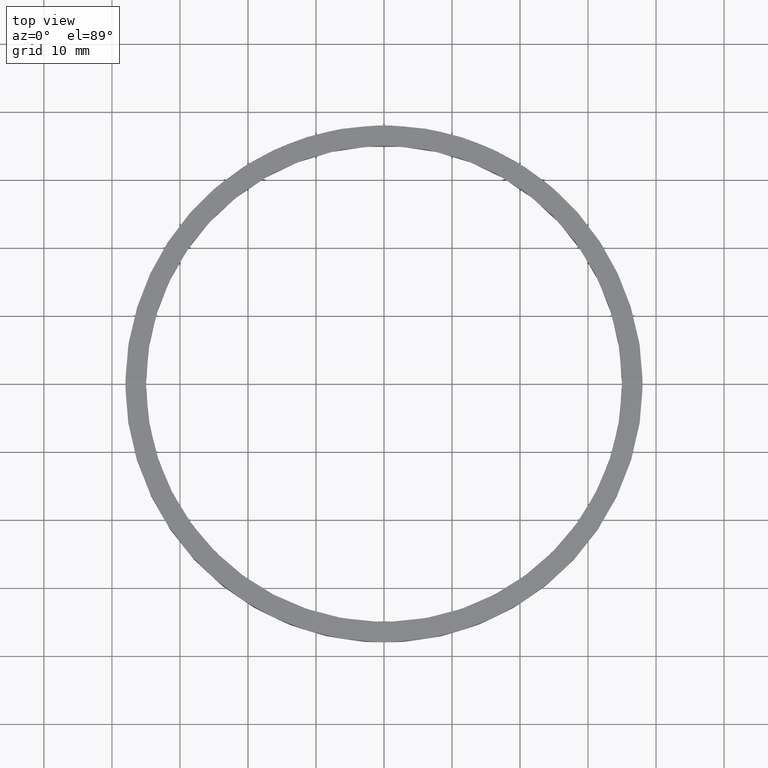
[diagram: clean part render]
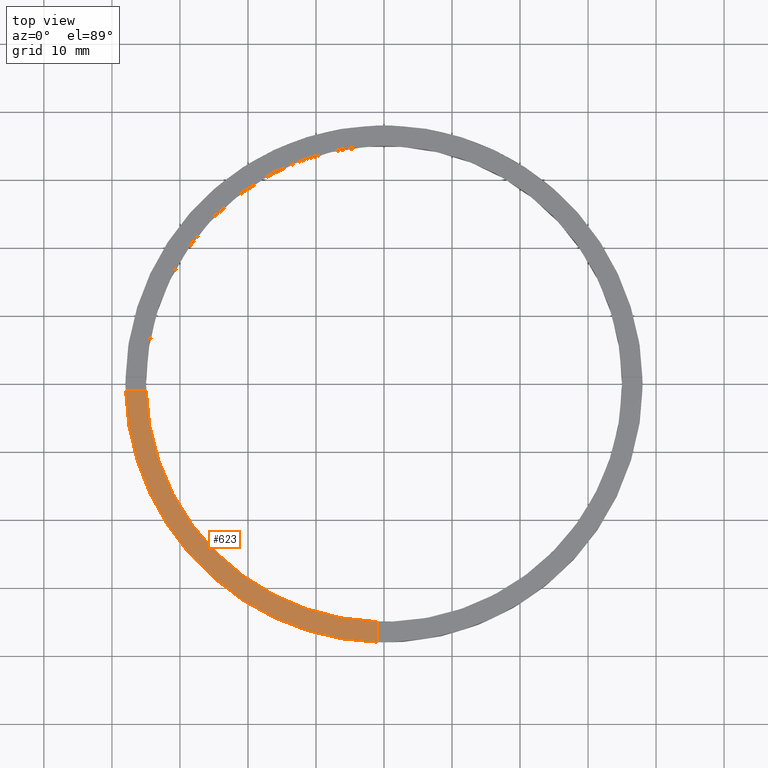
[diagram: same view with one face highlighted and labeled with its STEP entity id]
A machine part, top view. The second image highlights one B-rep face of the part: STEP entity #623.
In plain terms, the highlighted planar face has unit normal (0, 0, 1).
Its self-contained STEP definition (entity closure, byte-faithful):
#4 = EDGE_CURVE ( 'NONE', #170, #750, #207, .T. ) ;
#8 = CARTESIAN_POINT ( 'NONE',  ( -28.00000000000018474, -1.000000000000025757, 3.500000000000000000 ) ) ;
#42 = CARTESIAN_POINT ( 'NONE',  ( -1.000000000000159872, -37.98683982644514856, 3.500000000000000000 ) ) ;
#58 = DIRECTION ( 'NONE',  ( 0.000000000000000000, 0.000000000000000000, 1.000000000000000000 ) ) ;
#69 = AXIS2_PLACEMENT_3D ( 'NONE', #519, #371, #576 ) ;
#82 = EDGE_LOOP ( 'NONE', ( #505, #216, #88, #647 ) ) ;
#88 = ORIENTED_EDGE ( 'NONE', *, *, #125, .F. ) ;
#125 = EDGE_CURVE ( 'NONE', #398, #379, #458, .T. ) ;
#131 = CARTESIAN_POINT ( 'NONE',  ( -34.98571136907180801, -1.000000000000027089, 3.500000000000000000 ) ) ;
#170 = VERTEX_POINT ( 'NONE', #541 ) ;
#207 = LINE ( 'NONE', #310, #697 ) ;
#216 = ORIENTED_EDGE ( 'NONE', *, *, #401, .F. ) ;
#271 = DIRECTION ( 'NONE',  ( 1.000000000000000000, 1.951563910473907735E-16, -0.000000000000000000 ) ) ;
#310 = CARTESIAN_POINT ( 'NONE',  ( -1.000000000000161204, -28.00000000000017764, 3.500000000000000000 ) ) ;
#362 = FACE_OUTER_BOUND ( 'NONE', #82, .T. ) ;
#371 = DIRECTION ( 'NONE',  ( 0.000000000000000000, 0.000000000000000000, 1.000000000000000000 ) ) ;
#379 = VERTEX_POINT ( 'NONE', #131 ) ;
#387 = DIRECTION ( 'NONE',  ( 1.301042606982605074E-16, -1.000000000000000000, 0.000000000000000000 ) ) ;
#390 = CARTESIAN_POINT ( 'NONE',  ( -37.98683982644515567, -1.000000000000027756, 3.500000000000000000 ) ) ;
#395 = DIRECTION ( 'NONE',  ( 1.000000000000000000, 0.000000000000000000, 0.000000000000000000 ) ) ;
#398 = VERTEX_POINT ( 'NONE', #390 ) ;
#401 = EDGE_CURVE ( 'NONE', #379, #170, #556, .T. ) ;
#414 = AXIS2_PLACEMENT_3D ( 'NONE', #734, #58, #395 ) ;
#416 = EDGE_CURVE ( 'NONE', #398, #750, #562, .T. ) ;
#426 = PLANE ( 'NONE',  #716 ) ;
#458 = LINE ( 'NONE', #8, #707 ) ;
#463 = DIRECTION ( 'NONE',  ( 1.000000000000000000, 0.000000000000000000, -0.000000000000000000 ) ) ;
#505 = ORIENTED_EDGE ( 'NONE', *, *, #4, .F. ) ;
#519 = CARTESIAN_POINT ( 'NONE',  ( 0.000000000000000000, 0.000000000000000000, 3.500000000000000000 ) ) ;
#530 = CARTESIAN_POINT ( 'NONE',  ( 0.000000000000000000, 0.000000000000000000, 3.500000000000000000 ) ) ;
#541 = CARTESIAN_POINT ( 'NONE',  ( -1.000000000000160316, -34.98571136907180090, 3.500000000000000000 ) ) ;
#556 = CIRCLE ( 'NONE', #414, 35.00000000000000711 ) ;
#562 = CIRCLE ( 'NONE', #69, 38.00000000000000000 ) ;
#576 = DIRECTION ( 'NONE',  ( 1.000000000000000000, 0.000000000000000000, 0.000000000000000000 ) ) ;
#623 = ADVANCED_FACE ( 'NONE', ( #362 ), #426, .T. ) ;
#647 = ORIENTED_EDGE ( 'NONE', *, *, #416, .T. ) ;
#697 = VECTOR ( 'NONE', #387, 1000.000000000000000 ) ;
#707 = VECTOR ( 'NONE', #271, 1000.000000000000000 ) ;
#716 = AXIS2_PLACEMENT_3D ( 'NONE', #530, #782, #463 ) ;
#734 = CARTESIAN_POINT ( 'NONE',  ( 0.000000000000000000, 0.000000000000000000, 3.500000000000000000 ) ) ;
#750 = VERTEX_POINT ( 'NONE', #42 ) ;
#782 = DIRECTION ( 'NONE',  ( 0.000000000000000000, 0.000000000000000000, 1.000000000000000000 ) ) ;